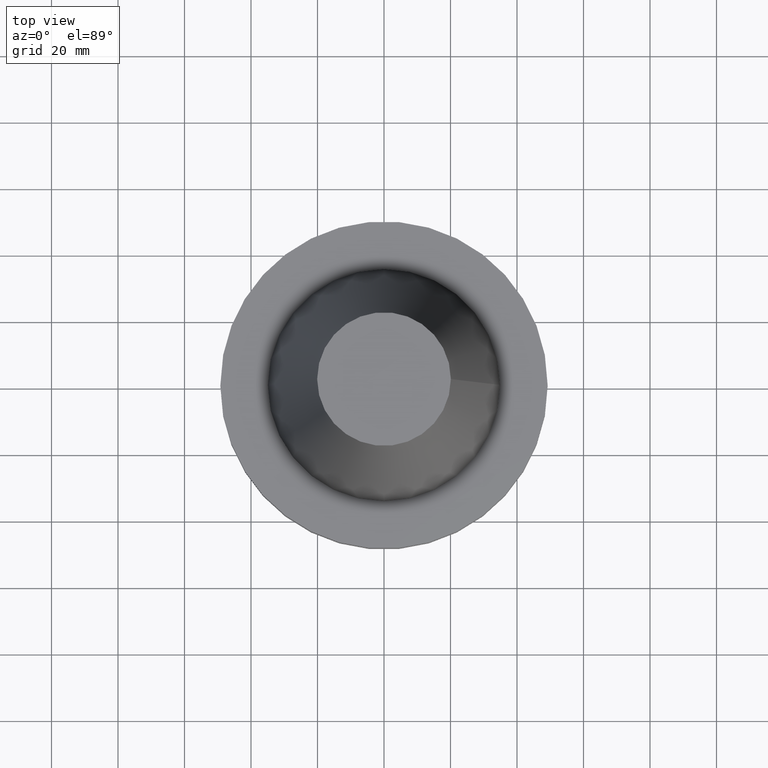
[diagram: clean part render]
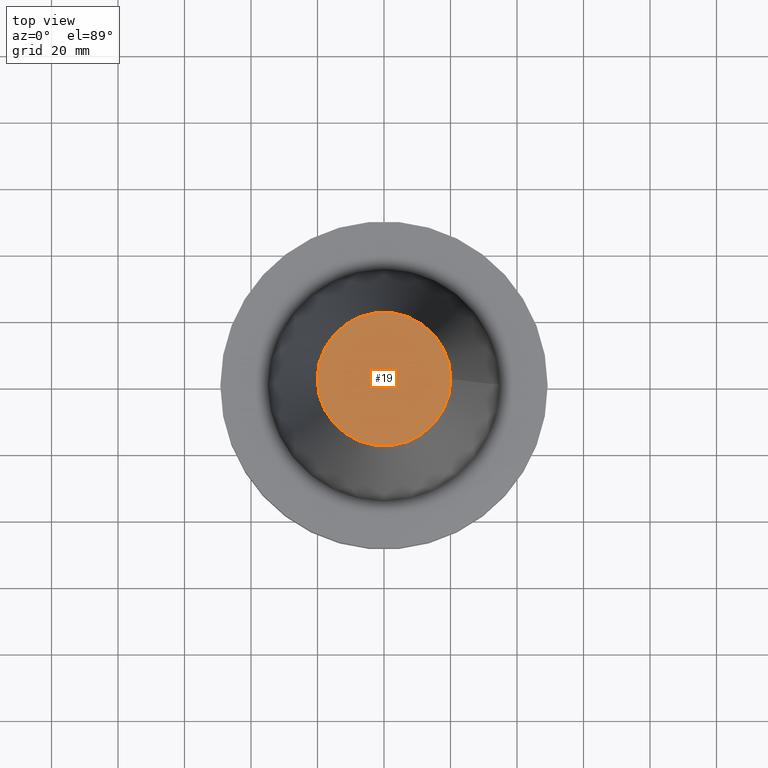
[diagram: same view with one face highlighted and labeled with its STEP entity id]
A machine part, top view. The second image highlights one B-rep face of the part: STEP entity #19.
In plain terms, the highlighted planar face has unit normal (0, 0, -1).
Its self-contained STEP definition (entity closure, byte-faithful):
#5 = AXIS2_PLACEMENT_3D ( 'NONE', #68, #184, #158 ) ;
#17 = ORIENTED_EDGE ( 'NONE', *, *, #385, .T. ) ;
#19 = ADVANCED_FACE ( 'NONE', ( #134 ), #105, .F. ) ;
#68 = CARTESIAN_POINT ( 'NONE',  ( 0.000000000000000000, 0.000000000000000000, 101.5999999999999801 ) ) ;
#81 = CIRCLE ( 'NONE', #5, 20.10819343178871321 ) ;
#105 = PLANE ( 'NONE',  #208 ) ;
#134 = FACE_OUTER_BOUND ( 'NONE', #195, .T. ) ;
#158 = DIRECTION ( 'NONE',  ( 1.000000000000000000, 0.000000000000000000, 0.000000000000000000 ) ) ;
#170 = DIRECTION ( 'NONE',  ( 0.000000000000000000, 0.000000000000000000, -1.000000000000000000 ) ) ;
#184 = DIRECTION ( 'NONE',  ( -0.000000000000000000, -0.000000000000000000, 1.000000000000000000 ) ) ;
#195 = EDGE_LOOP ( 'NONE', ( #17 ) ) ;
#208 = AXIS2_PLACEMENT_3D ( 'NONE', #228, #170, #349 ) ;
#222 = VERTEX_POINT ( 'NONE', #348 ) ;
#228 = CARTESIAN_POINT ( 'NONE',  ( 0.000000000000000000, 20.10819343178871321, 101.5999999999999943 ) ) ;
#348 = CARTESIAN_POINT ( 'NONE',  ( 20.10819343178871321, 0.000000000000000000, 101.5999999999999801 ) ) ;
#349 = DIRECTION ( 'NONE',  ( -1.000000000000000000, 0.000000000000000000, -0.000000000000000000 ) ) ;
#385 = EDGE_CURVE ( 'NONE', #222, #222, #81, .T. ) ;